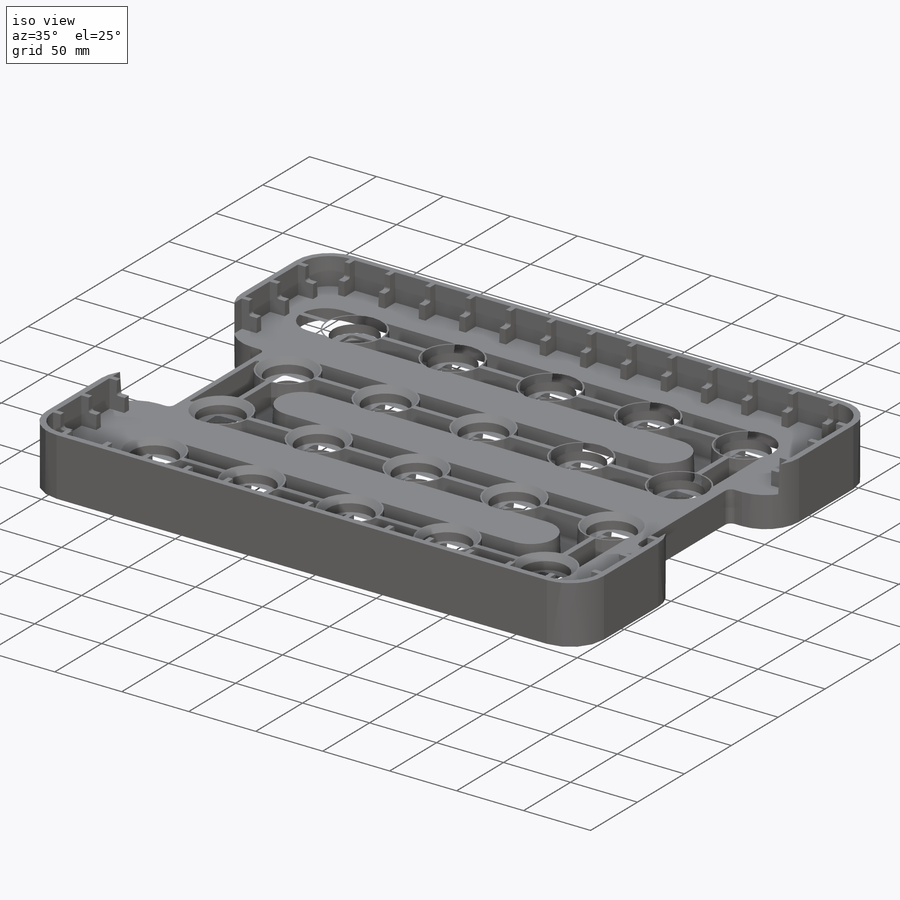
[diagram: iso view]
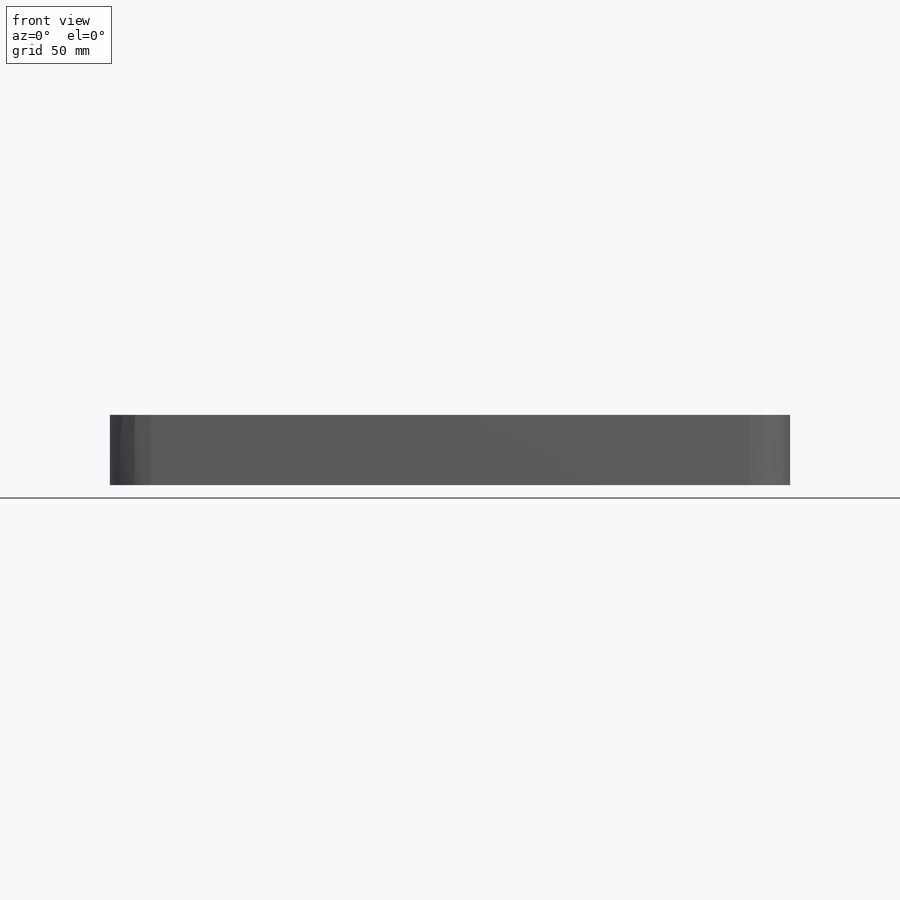
[diagram: front view]
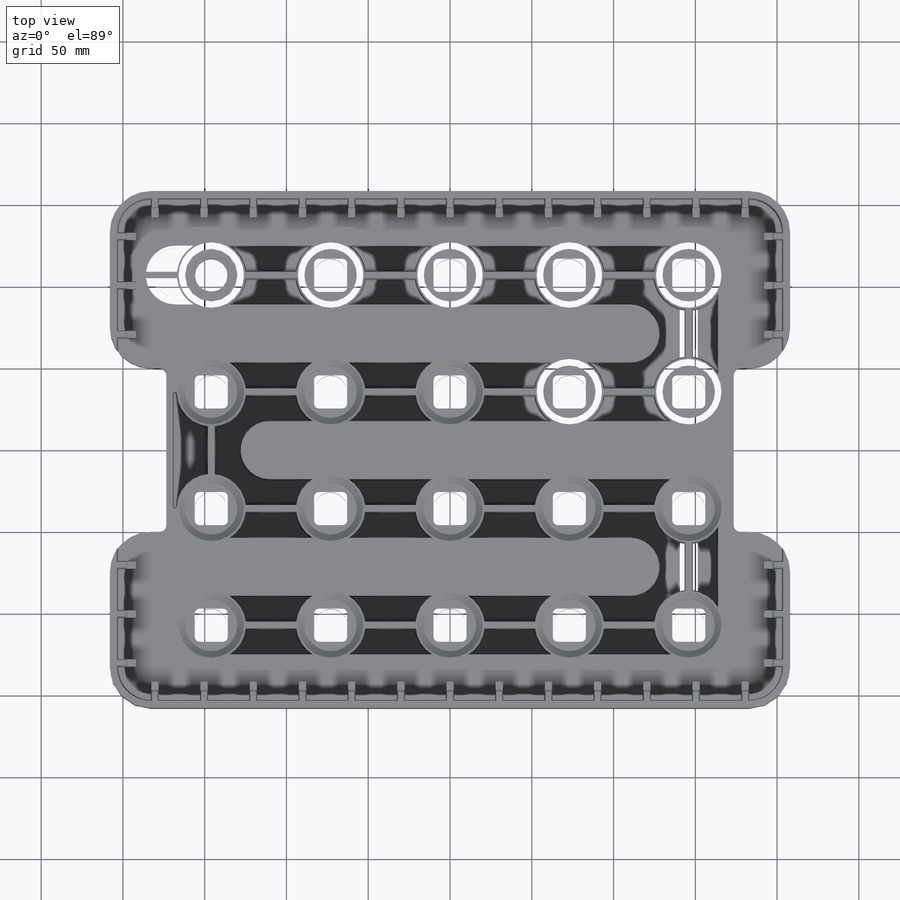
[diagram: top view]
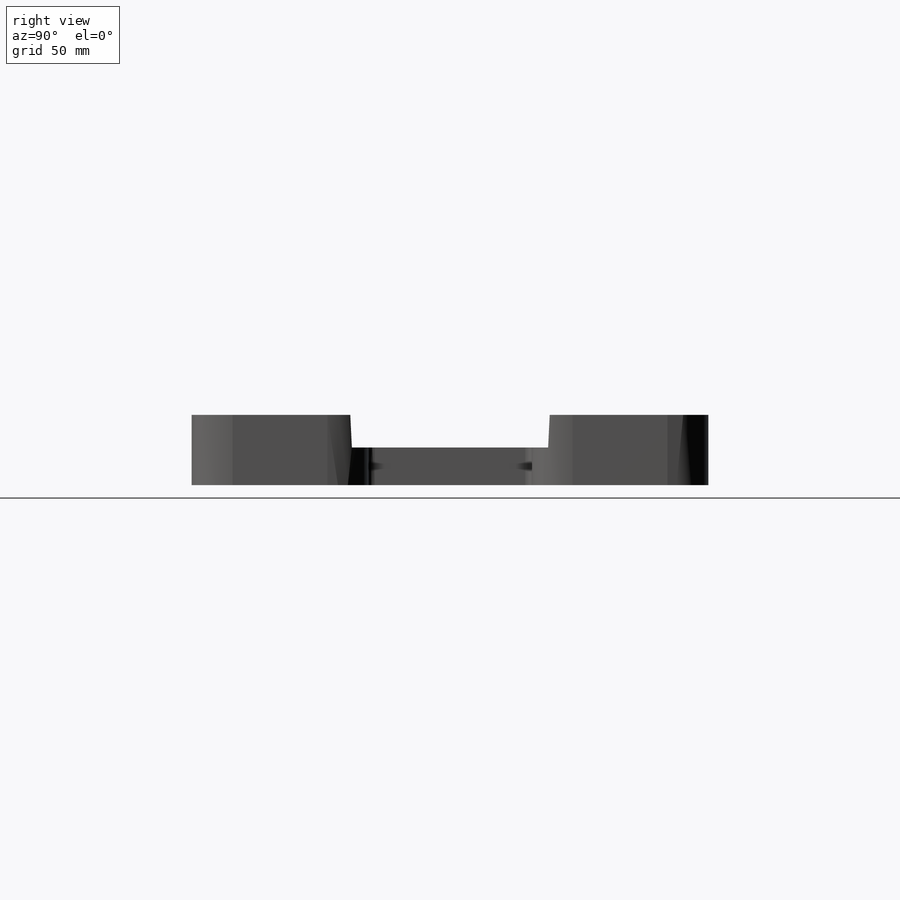
[diagram: right view]
SOLIDWORKS PART (.sldprt)
format: sldprt  version: not decoded by parser v0  size: 3,540,992 bytes
history: native  units: mm
features: sketch x33, cut_extrude x24, fillet x11, plane x5, pattern_linear x3, sweep x2, chamfer x2, material x1, extrude x1, cut_revolve x1, mirror x1 (+8 scaffold rows collapsed)
feature tree (92):
  scaffold x8  (default folders/planes/origin — collapsed)
  material  "POM Acetalkopolymer"
  plane  "Ebene vorne"
  plane  "Ebene oben"
  plane  "Ebene rechts"
  sketch  "Skizze1"  dims[D1=416.0mm D2=316.0mm]
  extrude  "Aufsatz-Linear austragen1"  Depth=50mm
  sketch  "Skizze2"  dims[c1.D3=~17.857913mm c1.D1=287.0mm c1.D2=380.0mm c1.D4=~71.333333mm c1.D5=~71.333333mm c1.D6=~71.333333mm c1.D7=73.0mm c1.D8=73.0mm c1.D9=73.0mm c1.D10=73.0mm c2.D1=0.0mm]
  cut_extrude  "Schnitt-Linear austragen1"  Depth=20mm
  sketch  "Skizze3"  dims[D1=34.5mm D2=34.5mm]
  cut_extrude  "Schnitt-Linear austragen2"  [1 undecoded]
  sketch  "Skizze4"  dims[D1=10.0mm]
  cut_extrude  "Schnitt-Linear austragen3"  [1 undecoded]
  fillet  "Verrundung1"  Radius=25mm
  sketch  "Skizze17"  dims[D1=0.0mm D2=0.0mm]
  cut_extrude  "Schnitt-Linear austragen11"  Depth=10mm
  sketch  "Skizze20"  dims[D3=5.0mm D1=6.0mm D2=6.0mm]
  cut_extrude  "Schnitt-Linear austragen14"  Depth=10mm
  sketch  "Skizze21"  dims[D1=20.0mm]
  cut_extrude  "Schnitt-Linear austragen15"  [1 undecoded]
  sketch  "Skizze22"  dims[D1=32.0mm]
  cut_extrude  "Schnitt-Linear austragen16"  Depth=10mm
  sketch  "Skizze23"  dims[D1=38.0mm]
  pattern_linear  "Lineares Muster1"  Count1=5 Count2=4 Spacing1=73mm Spacing2=71.333333mm
  sketch  "Skizze26"  dims[D1=0.0mm]
  cut_extrude  "Aufsatz-Linear austragen2"  Depth=3mm
  sketch  "Skizze24"  dims[c1.D1=4.5mm c1.D2=25.0mm c2.D1=25.0mm c2.D2=25.0mm]
  plane  "Ebene1"
  sketch  "Skizze25"  dims[D1=9.0mm]
  sketch  "Skizze36"  dims[D3=15.0mm D4=40.0mm D1=15.0mm D2=15.0mm]
  plane  "Ebene2"
  sweep  "Schnitt-Austragung7"
  sketch  "Skizze68"  dims[D1=0.0mm]
  cut_revolve  "Schnitt-Rotation1"  Angle=360deg
  sketch  "Skizze41"  dims[D1=4.0mm D2=3.5mm]
  sweep  "Schnitt-Austragung9"
  sketch  "Skizze33"  dims[D1=20.0mm D2=4.0mm D3=5.0mm]
  fillet  "Verrundung5"  Radius=4mm
  sketch  "Skizze42"
  cut_extrude  "Schnitt-Linear austragen21"  Depth=12.5mm
  sketch  "Skizze43"  dims[D1=15.0mm D2=12.5mm D3=37.0mm]
  fillet  "Verrundung9"  Radius=3mm
  sketch  "Skizze44"  dims[D1=9.0mm D2=12.5mm D3=51.0mm]
  cut_extrude  "Schnitt-Linear austragen23"  Depth=41.5mm
  sketch  "Skizze47"  dims[c1.D3=20.0mm c1.D4=10.0mm c1.D6=10.0mm c1.D7=10.0mm c1.D8=10.0mm c1.D9=20.0mm c1.D10=4.0mm c2.D7=7.0mm c2.D11=20.0mm c2.D4=4.0mm c2.D5=5.0mm c2.D3=5.0mm c2.D1=5.0mm c2.D2=5.0mm c3.D1=5.0mm c3.D2=5.0mm]
  cut_extrude  "Schnitt-Linear austragen26"  Depth=18mm
  sketch  "Skizze58"  dims[D1=3.0mm D2=20.2mm]
  cut_extrude  "Schnitt-Linear austragen38"  Depth=2mm
  sketch  "Skizze52"  dims[D3=2.0mm D1=32.0mm D2=5.0mm D4=12.0mm]
  sketch  "Skizze53"  dims[D1=20.0mm D2=8.0mm D3=16.0mm]
  cut_extrude  "Schnitt-Linear austragen34"  Depth=4mm
  fillet  "Verrundung17"  Radius=4mm
  fillet  "Verrundung18"  Radius=4mm
  fillet  "Verrundung19"  Radius=4mm
  fillet  "Verrundung20"  Radius=4mm
  cut_extrude  "Schnitt-Linear austragen35"  Depth=20mm
  sketch  "Skizze54"  dims[D2=5.0mm D1=20.0mm]
  cut_extrude  "Schnitt-Linear austragen36"  Depth=4mm
  sketch  "Skizze56"  dims[D1=15.0mm]
  cut_extrude  "Schnitt-Linear austragen37"  Depth=27mm
  sketch  "Skizze66"  dims[D1=18.0mm D2=5.0mm D3=2.5mm]
  cut_extrude  "Aufsatz-Linear austragen3"  [1 undecoded]
  fillet  "Verrundung32"  Radius=5mm
  sketch  "Skizze76"  dims[c1.D2=5.0mm c1.D3=5.0mm c1.D4=5.0mm c1.D5=5.0mm c1.D6=5.0mm c1.D7=25.0mm c1.D8=5.0mm c2.D3=2.5mm c2.D4=5.0mm c2.D9=5.0mm c2.D10=5.0mm c2.D11=5.0mm c2.D12=5.0mm c2.D13=25.0mm c2.D14=25.0mm c2.D15=25.0mm c2.D16=25.0mm c2.D17=25.0mm c2.D18=25.5mm c2.D1=5.0mm]
  cut_extrude  "Schnitt-Linear austragen51"  [1 undecoded]
  sketch  "Skizze77"  dims[c1.D2=32.0mm c1.D1=18.0mm c2.D2=5.0mm c2.D3=18.0mm c2.D4=4.0mm]
  cut_extrude  "Schnitt-Linear austragen52"  Depth=18mm
  fillet  "Verrundung33"  Radius=3mm
  pattern_linear  "Lineares Muster12"  Count1=4 Count2=4 Spacing1=73mm Spacing2=71.333333mm
  sketch  "Skizze78"  dims[c1.D1=18.0mm c1.D2=~6.756374mm c2.D2=90.0deg c3.D2=4.0mm c3.D3=18.0mm c3.D1=4.0mm c3.D4=~22.231933mm]
  cut_extrude  "Schnitt-Linear austragen53"  Depth=18mm
  fillet  "Verrundung35"  Radius=3mm
  sketch  "Skizze80"
  cut_extrude  "Schnitt-Linear austragen56"  Depth=18mm
  sketch  "Skizze81"  dims[c1.D2=42.0mm c1.D1=18.0mm c2.D2=4.0mm]
  cut_extrude  "Schnitt-Linear austragen57"  Depth=18mm
  sketch  "Skizze82"
  cut_extrude  "Schnitt-Linear austragen58"  Depth=18mm
  mirror  "Spiegeln1"
  chamfer  "Fase1"  Distance=4mm Angle=45deg
  pattern_linear  "Lineares Muster14"  Count1=5 Count2=4 Spacing1=73mm Spacing2=71.333333mm
  fillet  "Verrundung37"  Radius=3mm
  chamfer  "Formschräge2"  Angle=2deg  [1 undecoded]
  sketch  "Skizze83"  dims[c1.D3=42.0mm c1.D2=4.0mm c2.D3=~29.894146mm c2.D1=4.0mm]
  cut_extrude  "Schnitt-Linear austragen59"  Depth=18mm
decode coverage: 67 of 78 modeling features carry decoded parameters
note: ~ marks probable driven/reference dimensions
note: 6 parameter values undecoded
summary: no parameter record found for 6 features
note: suppression state not decoded; provenance and decode notes live in map.json
